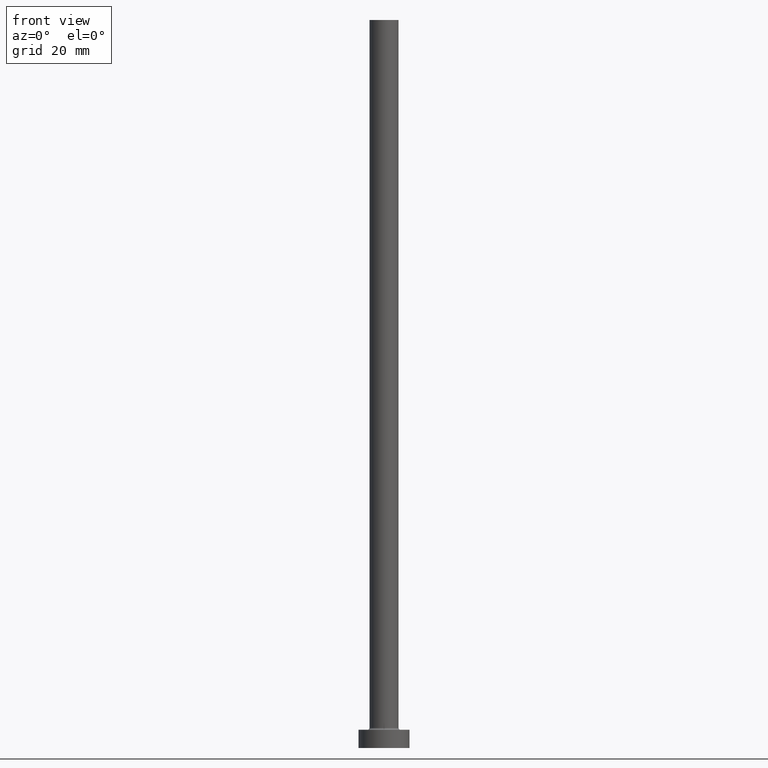
[diagram: clean part render]
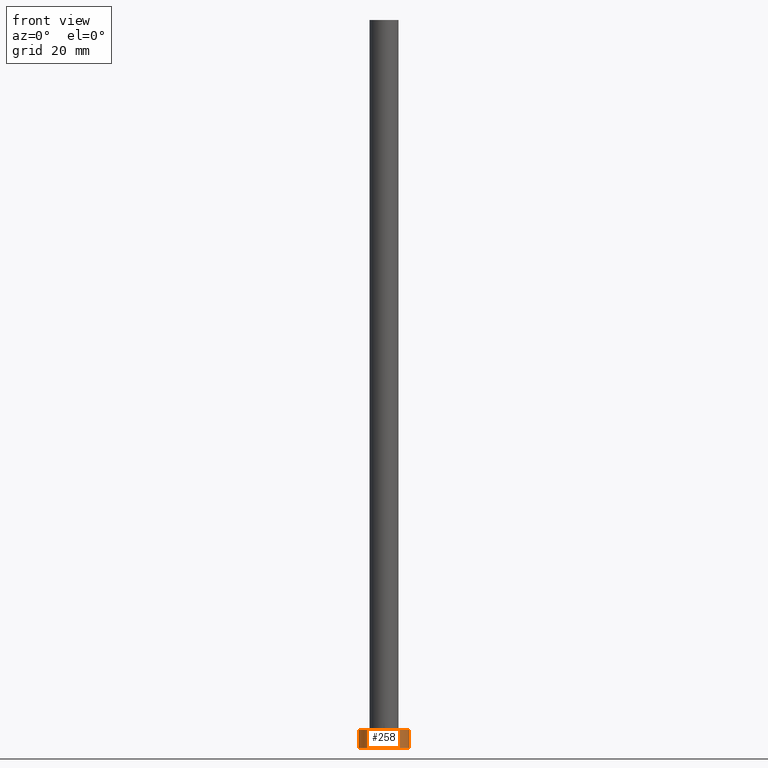
[diagram: same view with one face highlighted and labeled with its STEP entity id]
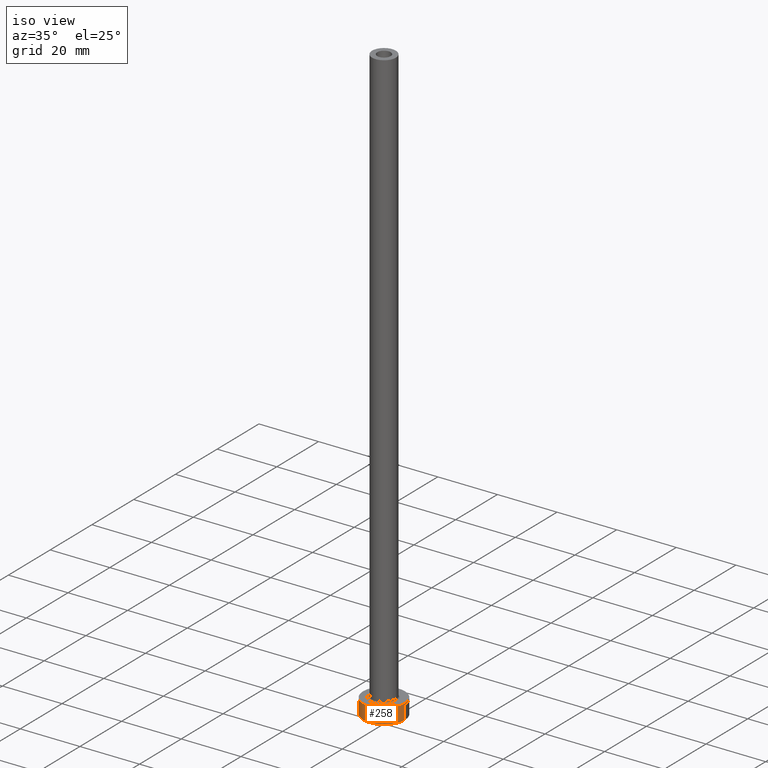
[diagram: same view with one face highlighted and labeled with its STEP entity id]
A machine part, front view. The second image highlights one B-rep face of the part: STEP entity #258.
A second angle (iso view) of the same face is appended — the face is thin or edge-on in the first view.
In plain terms, the highlighted cylindrical surface (edge-blend (fillet) strip) has radius 7 mm, axis along (-0, -0, -1).
Its self-contained STEP definition (entity closure, byte-faithful):
#23 = DIRECTION ( 'NONE',  ( -0.000000000000000000, -0.000000000000000000, -1.000000000000000000 ) ) ;
#31 = DIRECTION ( 'NONE',  ( 0.000000000000000000, 0.000000000000000000, 1.000000000000000000 ) ) ;
#36 = LINE ( 'NONE', #309, #298 ) ;
#69 = VERTEX_POINT ( 'NONE', #152 ) ;
#86 = CARTESIAN_POINT ( 'NONE',  ( 0.000000000000000000, 0.000000000000000000, 5.000000000000000000 ) ) ;
#93 = EDGE_CURVE ( 'NONE', #350, #69, #375, .T. ) ;
#117 = ORIENTED_EDGE ( 'NONE', *, *, #324, .F. ) ;
#138 = CARTESIAN_POINT ( 'NONE',  ( 7.000000000000000000, 8.572527594031473190E-16, 5.000000000000000000 ) ) ;
#152 = CARTESIAN_POINT ( 'NONE',  ( 7.000000000000000000, 8.572527594031473190E-16, 0.000000000000000000 ) ) ;
#199 = CARTESIAN_POINT ( 'NONE',  ( -7.000000000000000000, 0.000000000000000000, 5.000000000000000000 ) ) ;
#236 = AXIS2_PLACEMENT_3D ( 'NONE', #271, #356, #459 ) ;
#242 = DIRECTION ( 'NONE',  ( -0.000000000000000000, -0.000000000000000000, -1.000000000000000000 ) ) ;
#258 = ADVANCED_FACE ( 'NONE', ( #368 ), #371, .T. ) ;
#260 = VECTOR ( 'NONE', #242, 1000.000000000000000 ) ;
#267 = CARTESIAN_POINT ( 'NONE',  ( -7.000000000000000000, 0.000000000000000000, 0.000000000000000000 ) ) ;
#271 = CARTESIAN_POINT ( 'NONE',  ( 0.000000000000000000, 0.000000000000000000, 0.000000000000000000 ) ) ;
#287 = CARTESIAN_POINT ( 'NONE',  ( -7.000000000000000000, 0.000000000000000000, 5.000000000000000000 ) ) ;
#290 = CIRCLE ( 'NONE', #428, 7.000000000000000000 ) ;
#297 = LINE ( 'NONE', #287, #260 ) ;
#298 = VECTOR ( 'NONE', #311, 1000.000000000000000 ) ;
#309 = CARTESIAN_POINT ( 'NONE',  ( 7.000000000000000000, 8.572527594031473190E-16, 5.000000000000000000 ) ) ;
#311 = DIRECTION ( 'NONE',  ( -0.000000000000000000, -0.000000000000000000, -1.000000000000000000 ) ) ;
#324 = EDGE_CURVE ( 'NONE', #449, #69, #36, .T. ) ;
#350 = VERTEX_POINT ( 'NONE', #267 ) ;
#352 = ORIENTED_EDGE ( 'NONE', *, *, #93, .T. ) ;
#353 = CARTESIAN_POINT ( 'NONE',  ( 0.000000000000000000, 0.000000000000000000, 5.000000000000000000 ) ) ;
#356 = DIRECTION ( 'NONE',  ( 0.000000000000000000, 0.000000000000000000, 1.000000000000000000 ) ) ;
#366 = ORIENTED_EDGE ( 'NONE', *, *, #394, .F. ) ;
#368 = FACE_OUTER_BOUND ( 'NONE', #458, .T. ) ;
#371 = CYLINDRICAL_SURFACE ( 'NONE', #420, 7.000000000000000000 ) ;
#373 = VERTEX_POINT ( 'NONE', #199 ) ;
#375 = CIRCLE ( 'NONE', #236, 7.000000000000000000 ) ;
#381 = ORIENTED_EDGE ( 'NONE', *, *, #445, .T. ) ;
#394 = EDGE_CURVE ( 'NONE', #373, #449, #290, .T. ) ;
#409 = DIRECTION ( 'NONE',  ( -1.000000000000000000, 0.000000000000000000, 0.000000000000000000 ) ) ;
#420 = AXIS2_PLACEMENT_3D ( 'NONE', #86, #23, #409 ) ;
#428 = AXIS2_PLACEMENT_3D ( 'NONE', #353, #31, #437 ) ;
#437 = DIRECTION ( 'NONE',  ( 1.000000000000000000, 0.000000000000000000, 0.000000000000000000 ) ) ;
#445 = EDGE_CURVE ( 'NONE', #373, #350, #297, .T. ) ;
#449 = VERTEX_POINT ( 'NONE', #138 ) ;
#458 = EDGE_LOOP ( 'NONE', ( #117, #366, #381, #352 ) ) ;
#459 = DIRECTION ( 'NONE',  ( 1.000000000000000000, 0.000000000000000000, 0.000000000000000000 ) ) ;